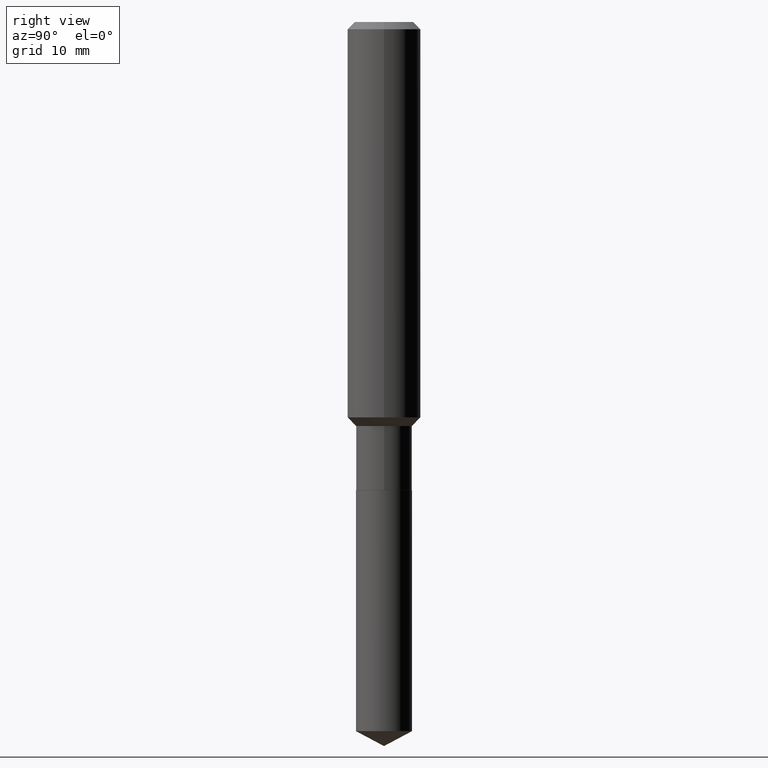
[diagram: clean part render]
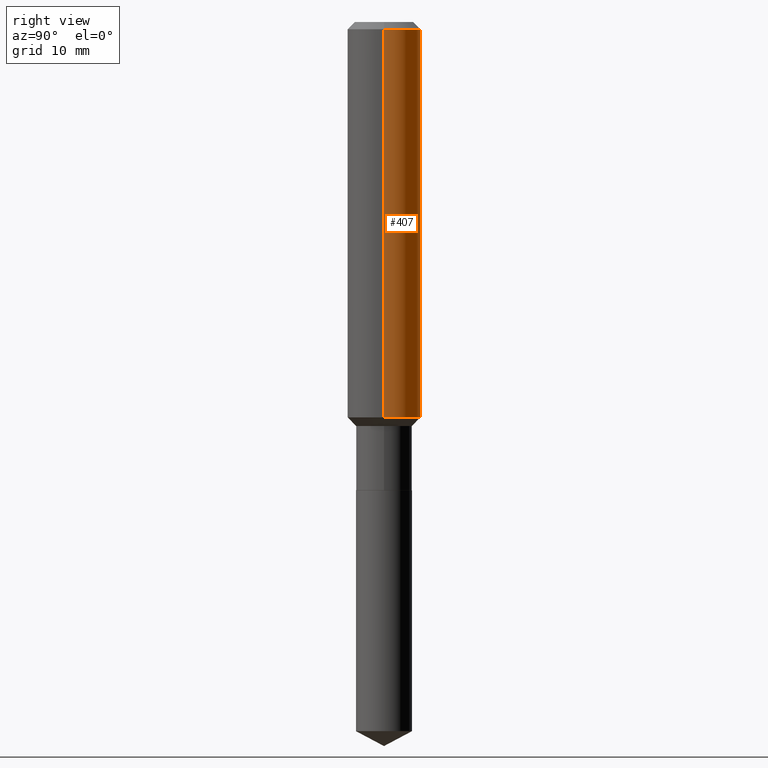
[diagram: same view with one face highlighted and labeled with its STEP entity id]
A machine part, right view. The second image highlights one B-rep face of the part: STEP entity #407.
In plain terms, the highlighted cylindrical surface (partial cylindrical patch) has radius 4.0005 mm, axis along (-0, 0, 1).
Its self-contained STEP definition (entity closure, byte-faithful):
#17 = CYLINDRICAL_SURFACE ( 'NONE', #236, 0.1575000000000000844 ) ;
#34 = EDGE_CURVE ( 'NONE', #42, #181, #263, .T. ) ;
#35 = VERTEX_POINT ( 'NONE', #380 ) ;
#42 = VERTEX_POINT ( 'NONE', #259 ) ;
#80 = FACE_OUTER_BOUND ( 'NONE', #239, .T. ) ;
#103 = CARTESIAN_POINT ( 'NONE',  ( 4.152895126663598802E-29, -5.929233609623429802E-15, -1.698199999999999932 ) ) ;
#110 = DIRECTION ( 'NONE',  ( -2.445468806185136597E-29, 3.491481338843145583E-15, 1.000000000000000000 ) ) ;
#143 = DIRECTION ( 'NONE',  ( -2.445468806185136597E-29, 3.491481338843145583E-15, 1.000000000000000000 ) ) ;
#168 = ORIENTED_EDGE ( 'NONE', *, *, #215, .T. ) ;
#171 = CARTESIAN_POINT ( 'NONE',  ( 0.1575000000000000011, -1.209798283909146741E-15, -0.03150000000000018757 ) ) ;
#181 = VERTEX_POINT ( 'NONE', #171 ) ;
#187 = CARTESIAN_POINT ( 'NONE',  ( 0.1575000000000000844, -1.099816621735587677E-15, 7.679978421878603638E-30 ) ) ;
#197 = ORIENTED_EDGE ( 'NONE', *, *, #275, .T. ) ;
#208 = CARTESIAN_POINT ( 'NONE',  ( -0.1575000000000000844, 1.119104808822158392E-15, -7.747322767151481189E-30 ) ) ;
#215 = EDGE_CURVE ( 'NONE', #35, #388, #217, .T. ) ;
#217 = LINE ( 'NONE', #208, #323 ) ;
#218 = ORIENTED_EDGE ( 'NONE', *, *, #441, .F. ) ;
#228 = CARTESIAN_POINT ( 'NONE',  ( 0.000000000000000000, 0.000000000000000000, 0.000000000000000000 ) ) ;
#236 = AXIS2_PLACEMENT_3D ( 'NONE', #228, #372, #268 ) ;
#238 = DIRECTION ( 'NONE',  ( 1.000000000000000000, -6.982962677686265922E-15, 0.000000000000000000 ) ) ;
#239 = EDGE_LOOP ( 'NONE', ( #197, #168, #218, #357 ) ) ;
#259 = CARTESIAN_POINT ( 'NONE',  ( 0.1575000000000001954, -7.029050231359018071E-15, -1.698199999999999932 ) ) ;
#263 = LINE ( 'NONE', #187, #429 ) ;
#268 = DIRECTION ( 'NONE',  ( 1.000000000000000000, -6.982962677686267499E-15, 4.876176775795936353E-29 ) ) ;
#275 = EDGE_CURVE ( 'NONE', #42, #35, #460, .T. ) ;
#289 = AXIS2_PLACEMENT_3D ( 'NONE', #103, #143, #436 ) ;
#293 = CARTESIAN_POINT ( 'NONE',  ( 7.703226739483226095E-31, -1.099816621735597415E-16, -0.03150000000000018757 ) ) ;
#296 = DIRECTION ( 'NONE',  ( -2.445468806185136877E-29, 3.491481338843145188E-15, 1.000000000000000000 ) ) ;
#323 = VECTOR ( 'NONE', #391, 39.37007874015748143 ) ;
#357 = ORIENTED_EDGE ( 'NONE', *, *, #34, .F. ) ;
#372 = DIRECTION ( 'NONE',  ( -2.445468806185136597E-29, 3.491481338843145583E-15, 1.000000000000000000 ) ) ;
#380 = CARTESIAN_POINT ( 'NONE',  ( -0.1575000000000001954, -4.810128800801269832E-15, -1.698199999999999932 ) ) ;
#383 = CARTESIAN_POINT ( 'NONE',  ( -0.1575000000000000011, -1.900502827076335449E-15, -0.03150000000000018757 ) ) ;
#388 = VERTEX_POINT ( 'NONE', #383 ) ;
#391 = DIRECTION ( 'NONE',  ( -2.445468806185136877E-29, 3.491481338843145188E-15, 1.000000000000000000 ) ) ;
#407 = ADVANCED_FACE ( 'NONE', ( #80 ), #17, .T. ) ;
#417 = CIRCLE ( 'NONE', #461, 0.1575000000000000011 ) ;
#429 = VECTOR ( 'NONE', #296, 39.37007874015748143 ) ;
#436 = DIRECTION ( 'NONE',  ( 1.000000000000000000, -6.982962677686265922E-15, 0.000000000000000000 ) ) ;
#441 = EDGE_CURVE ( 'NONE', #181, #388, #417, .T. ) ;
#460 = CIRCLE ( 'NONE', #289, 0.1575000000000001954 ) ;
#461 = AXIS2_PLACEMENT_3D ( 'NONE', #293, #110, #238 ) ;